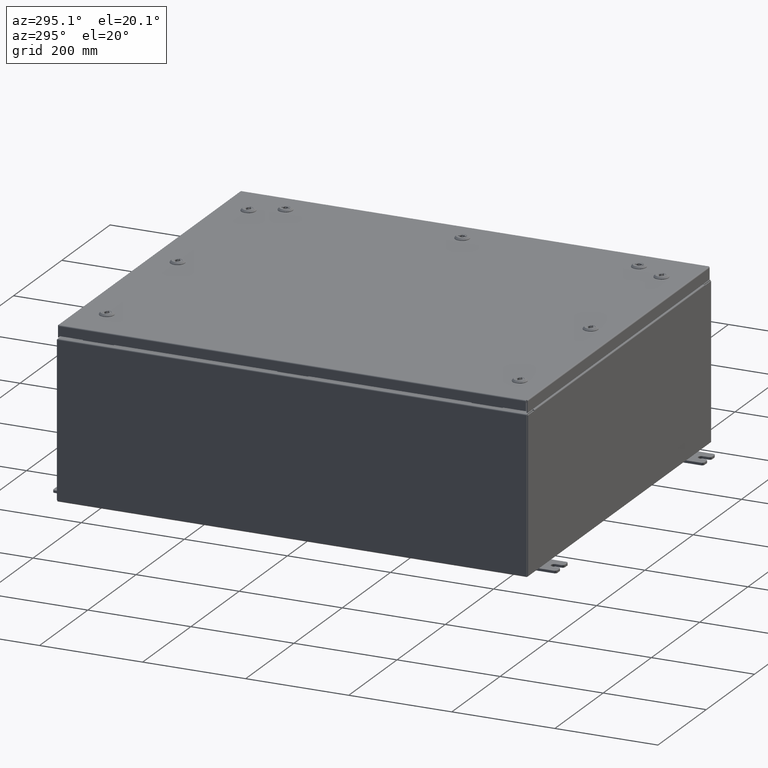
[diagram: clean part render]
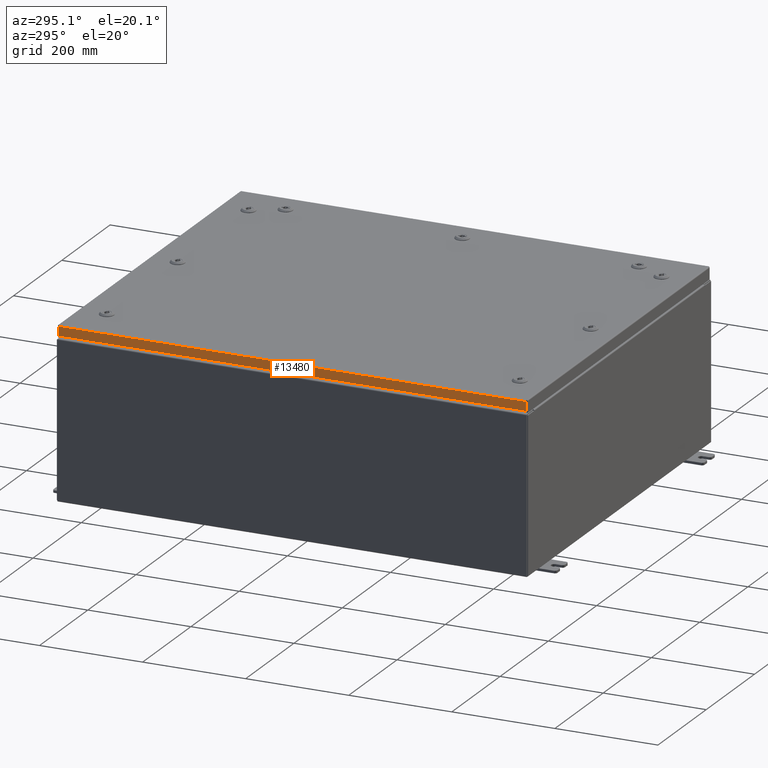
[diagram: same view with one face highlighted and labeled with its STEP entity id]
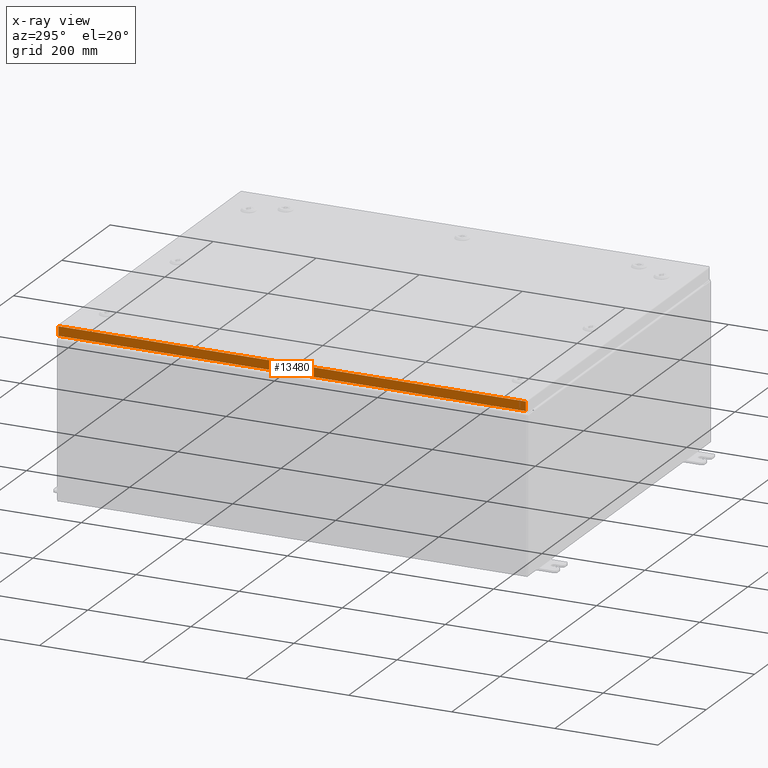
[diagram: x-ray of the same camera — body ghosted, the highlighted face saturated]
A machine part, auxiliary view. The second image highlights one B-rep face of the part: STEP entity #13480.
The next image is the same camera in x-ray: the body ghosted, the highlighted face saturated — about 0% of this face is hidden behind the body in this view.
In plain terms, the highlighted planar face has unit normal (1, 0, -0).
Its self-contained STEP definition (entity closure, byte-faithful):
#3784 = EDGE_CURVE ( 'NONE', #25026, #21962, #41117, .T. ) ;
#6117 = CARTESIAN_POINT ( 'NONE',  ( -14.93750000000000200, -17.84865786437627100, -0.07469999999999976700 ) ) ;
#6233 = EDGE_CURVE ( 'NONE', #10753, #26346, #43254, .T. ) ;
#7317 = EDGE_CURVE ( 'NONE', #25026, #26346, #53584, .T. ) ;
#7716 = EDGE_CURVE ( 'NONE', #21962, #10753, #32025, .T. ) ;
#10753 = VERTEX_POINT ( 'NONE', #62781 ) ;
#12924 = VECTOR ( 'NONE', #57392, 39.37007874015748100 ) ;
#13400 = DIRECTION ( 'NONE',  ( 3.696729780873900900E-031, -1.000000000000000000, -1.089726516288665400E-045 ) ) ;
#13480 = ADVANCED_FACE ( 'NONE', ( #14931 ), #24546, .F. ) ;
#14353 = ORIENTED_EDGE ( 'NONE', *, *, #6233, .F. ) ;
#14743 = CARTESIAN_POINT ( 'NONE',  ( -14.93750000000000400, -17.93750000000000000, -0.7949999999999997100 ) ) ;
#14931 = FACE_OUTER_BOUND ( 'NONE', #18120, .T. ) ;
#18120 = EDGE_LOOP ( 'NONE', ( #63694, #19237, #14353, #41233 ) ) ;
#19237 = ORIENTED_EDGE ( 'NONE', *, *, #7317, .T. ) ;
#21962 = VERTEX_POINT ( 'NONE', #52134 ) ;
#24546 = PLANE ( 'NONE',  #42265 ) ;
#24985 = CARTESIAN_POINT ( 'NONE',  ( -14.93750000000000200, -5.521990110180389400E-030, 4.558301763253240900E-014 ) ) ;
#25026 = VERTEX_POINT ( 'NONE', #47782 ) ;
#26346 = VERTEX_POINT ( 'NONE', #42747 ) ;
#29722 = VECTOR ( 'NONE', #50371, 39.37007874015748100 ) ;
#30110 = DIRECTION ( 'NONE',  ( -3.034122441942816500E-015, 0.0000000000000000000, -1.000000000000000000 ) ) ;
#32025 = LINE ( 'NONE', #6117, #39187 ) ;
#39187 = VECTOR ( 'NONE', #51755, 39.37007874015748100 ) ;
#39537 = VECTOR ( 'NONE', #13400, 39.37007874015748100 ) ;
#41117 = LINE ( 'NONE', #43886, #39537 ) ;
#41233 = ORIENTED_EDGE ( 'NONE', *, *, #7716, .F. ) ;
#42265 = AXIS2_PLACEMENT_3D ( 'NONE', #24985, #60638, #30110 ) ;
#42747 = CARTESIAN_POINT ( 'NONE',  ( -14.93750000000000400, 17.84865786437627500, -0.7949999999999954900 ) ) ;
#43254 = LINE ( 'NONE', #14743, #29722 ) ;
#43886 = CARTESIAN_POINT ( 'NONE',  ( -14.93750000000000200, -17.93750000000000000, -0.08770000000000004200 ) ) ;
#47782 = CARTESIAN_POINT ( 'NONE',  ( -14.93750000000000200, 17.84865786437626800, -0.08770000000000004200 ) ) ;
#50371 = DIRECTION ( 'NONE',  ( -4.379057701015054300E-047, 1.000000000000000000, 1.218385167906012900E-016 ) ) ;
#51755 = DIRECTION ( 'NONE',  ( -3.034122441942816500E-015, 6.982962677686267500E-015, -1.000000000000000000 ) ) ;
#52134 = CARTESIAN_POINT ( 'NONE',  ( -14.93750000000000200, -17.84865786437626800, -0.08770000000000007000 ) ) ;
#52278 = CARTESIAN_POINT ( 'NONE',  ( -14.93750000000000200, 17.84865786437626800, 1.702195293462633700E-013 ) ) ;
#53584 = LINE ( 'NONE', #52278, #12924 ) ;
#57392 = DIRECTION ( 'NONE',  ( -3.034122441942816500E-015, 6.982962677686267500E-015, -1.000000000000000000 ) ) ;
#60638 = DIRECTION ( 'NONE',  ( 1.000000000000000000, 3.696729780873900900E-031, -3.034122441942816500E-015 ) ) ;
#62781 = CARTESIAN_POINT ( 'NONE',  ( -14.93750000000000400, -17.84865786437626800, -0.7949999999999996000 ) ) ;
#63694 = ORIENTED_EDGE ( 'NONE', *, *, #3784, .F. ) ;